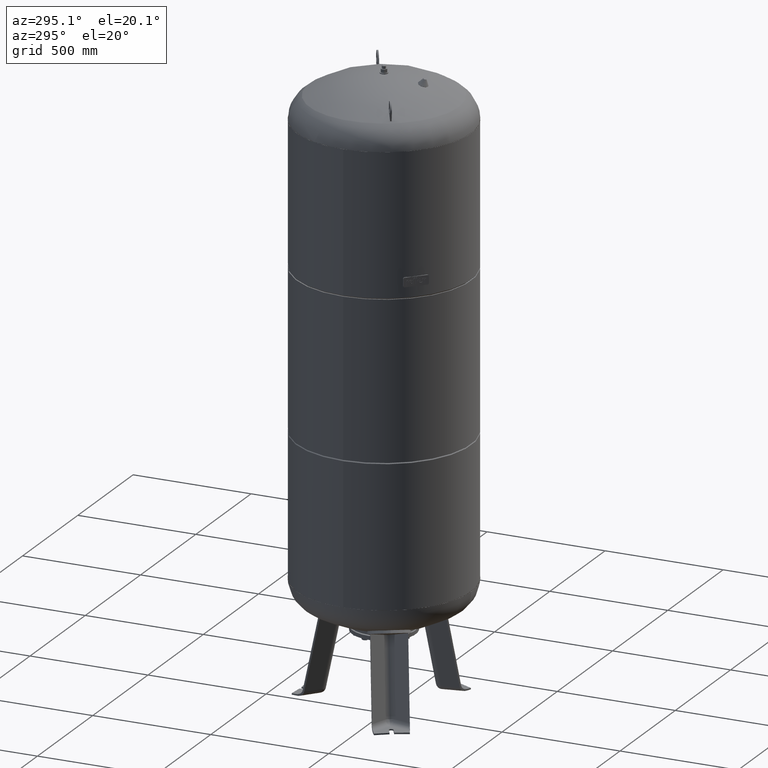
[diagram: clean part render]
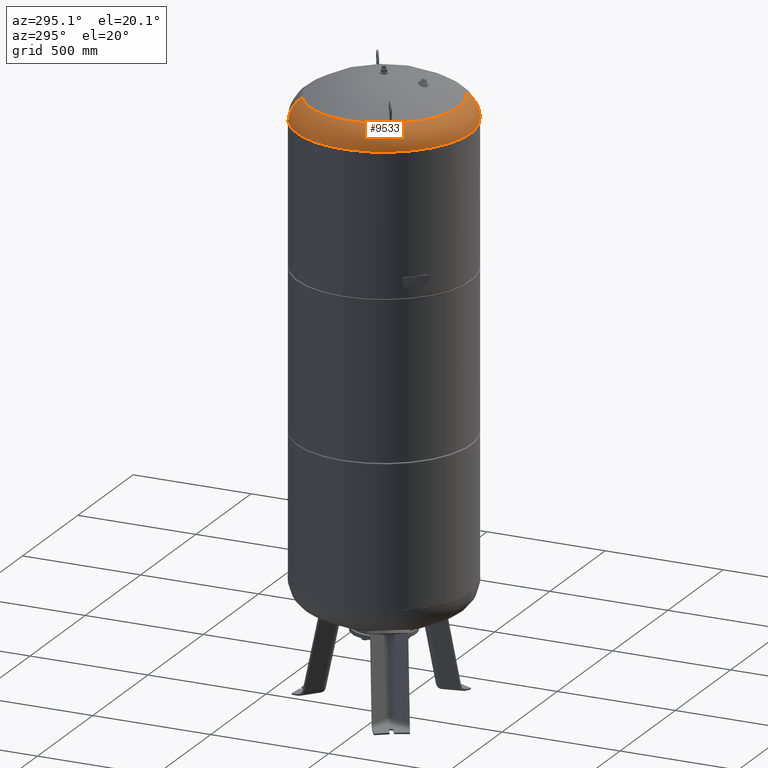
[diagram: same view with one face highlighted and labeled with its STEP entity id]
A machine part, auxiliary view. The second image highlights one B-rep face of the part: STEP entity #9533.
In plain terms, the highlighted toroidal blend (fillet) surface has major radius 254.5 mm and minor (blend) radius 115.5 mm.
Its self-contained STEP definition (entity closure, byte-faithful):
#8849=CARTESIAN_POINT('',(-320.429399400242350,-184.999999999999970,2384.206120388130300));
#8850=VERTEX_POINT('',#8849);
#8857=CARTESIAN_POINT('',(-184.999999999999970,320.429399400242350,2384.206120388130300));
#8858=VERTEX_POINT('',#8857);
#8859=CARTESIAN_POINT('',(-2.682575E-015,-4.159481E-014,2384.206120388130300));
#8860=DIRECTION('',(-1.060575E-016,-6.123234E-017,-1.000000000000000));
#8861=DIRECTION('',(0.866025403784439,0.500000000000000,-1.224647E-016));
#8862=AXIS2_PLACEMENT_3D('',#8859,#8860,#8861);
#8863=CIRCLE('',#8862,370.0);
#8864=EDGE_CURVE('',#8850,#8858,#8863,.T.);
#8881=CARTESIAN_POINT('',(185.0,-320.429399400242400,2384.206120388130300));
#8882=VERTEX_POINT('',#8881);
#8883=CARTESIAN_POINT('',(157.965517241379270,-273.604301705966460,2482.014494274920300));
#8884=VERTEX_POINT('',#8883);
#8885=CARTESIAN_POINT('',(127.249999999999970,-220.403465263139680,2384.206120388130300));
#8886=DIRECTION('',(-0.866025403784439,-0.500000000000000,1.224647E-016));
#8887=DIRECTION('',(0.500000000000000,-0.866025403784439,0.0));
#8888=AXIS2_PLACEMENT_3D('',#8885,#8886,#8887);
#8889=CIRCLE('',#8888,115.499999999999990);
#8890=EDGE_CURVE('',#8882,#8884,#8889,.T.);
#8900=CARTESIAN_POINT('',(-157.965517241379250,273.604301705966410,2482.014494274920300));
#8901=VERTEX_POINT('',#8900);
#8902=CARTESIAN_POINT('',(-127.249999999999970,220.403465263139680,2384.206120388130300));
#8903=DIRECTION('',(0.866025403784439,0.500000000000000,-1.224647E-016));
#8904=DIRECTION('',(-0.500000000000000,0.866025403784439,0.0));
#8905=AXIS2_PLACEMENT_3D('',#8902,#8903,#8904);
#8906=CIRCLE('',#8905,115.500000000000010);
#8907=EDGE_CURVE('',#8858,#8901,#8906,.T.);
#9505=CARTESIAN_POINT('',(-1.292814E-015,-2.004580E-014,2482.014494274920300));
#9506=DIRECTION('',(-1.060575E-016,-6.123234E-017,-1.0));
#9507=DIRECTION('',(0.866025403784439,0.500000000000000,-1.224647E-016));
#9508=AXIS2_PLACEMENT_3D('',#9505,#9506,#9507);
#9509=CIRCLE('',#9508,315.931034482758610);
#9510=EDGE_CURVE('',#8884,#8901,#9509,.T.);
#9515=CARTESIAN_POINT('',(-2.682575E-015,-4.159481E-014,2384.206120388130300));
#9516=DIRECTION('',(-1.420901E-017,-2.203186E-016,-1.0));
#9517=DIRECTION('',(0.500000000000000,-0.866025403784439,1.836970E-016));
#9518=AXIS2_PLACEMENT_3D('',#9515,#9516,#9517);
#9519=TOROIDAL_SURFACE('',#9518,254.500000000000030,115.500000000000000);
#9520=ORIENTED_EDGE('',*,*,#8890,.T.);
#9521=ORIENTED_EDGE('',*,*,#9510,.T.);
#9522=ORIENTED_EDGE('',*,*,#8907,.F.);
#9523=ORIENTED_EDGE('',*,*,#8864,.F.);
#9524=CARTESIAN_POINT('',(-2.682575E-015,-4.159481E-014,2384.206120388130300));
#9525=DIRECTION('',(-1.060575E-016,-6.123234E-017,-1.000000000000000));
#9526=DIRECTION('',(0.866025403784439,0.500000000000000,-1.224647E-016));
#9527=AXIS2_PLACEMENT_3D('',#9524,#9525,#9526);
#9528=CIRCLE('',#9527,370.0);
#9529=EDGE_CURVE('',#8882,#8850,#9528,.T.);
#9530=ORIENTED_EDGE('',*,*,#9529,.F.);
#9531=EDGE_LOOP('',(#9520,#9521,#9522,#9523,#9530));
#9532=FACE_OUTER_BOUND('',#9531,.T.);
#9533=ADVANCED_FACE('',(#9532),#9519,.T.);